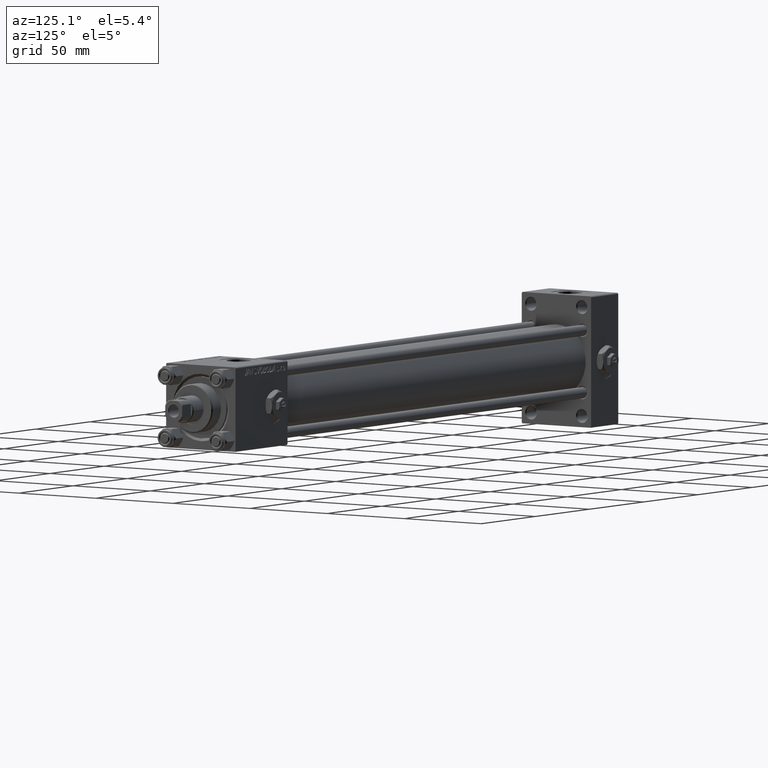
[diagram: clean part render]
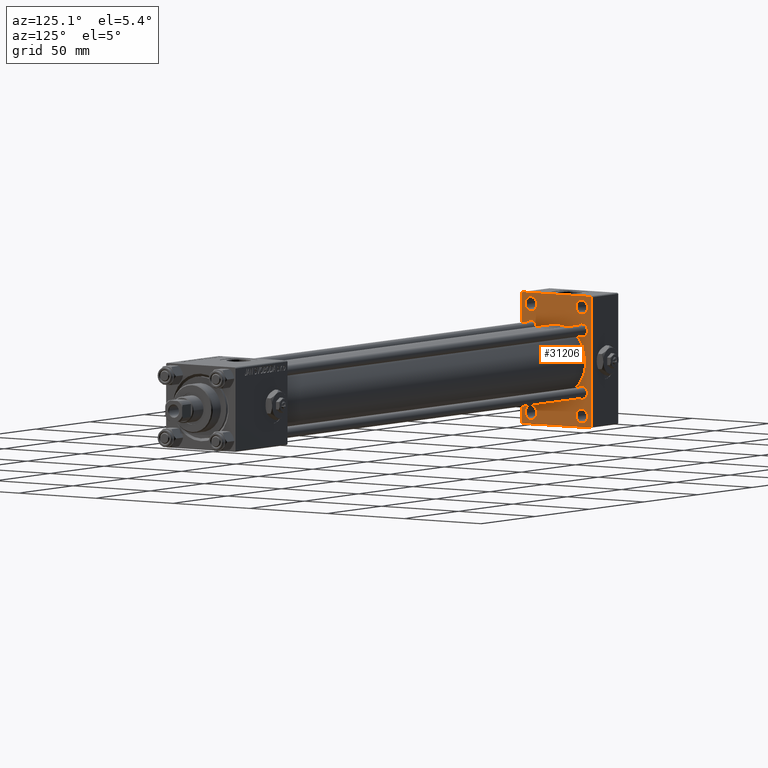
[diagram: same view with one face highlighted and labeled with its STEP entity id]
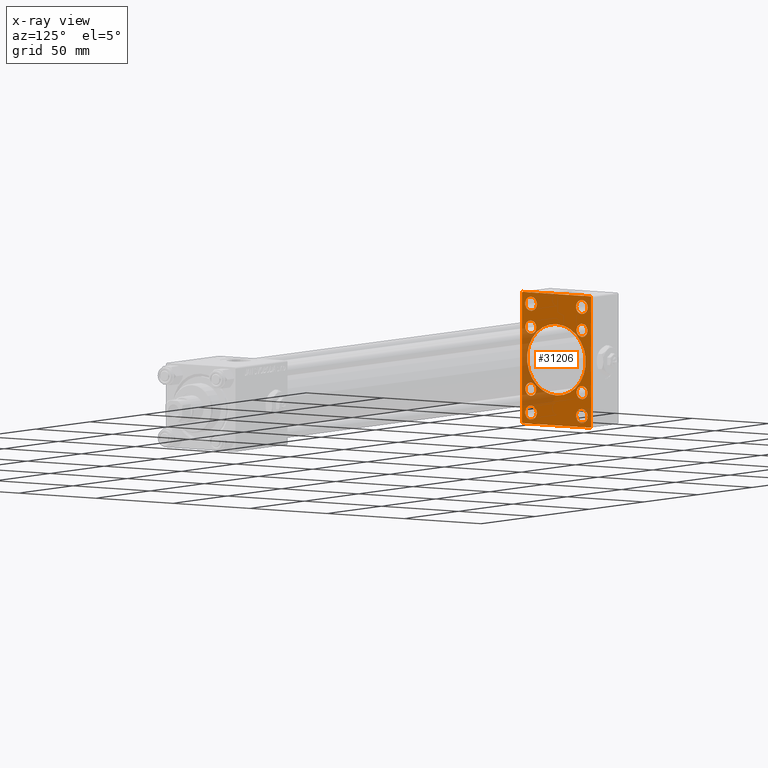
[diagram: x-ray of the same camera — body ghosted, the highlighted face saturated]
A machine part, auxiliary view. The second image highlights one B-rep face of the part: STEP entity #31206.
The next image is the same camera in x-ray: the body ghosted, the highlighted face saturated — about 18% of this face is hidden behind the body in this view.
In plain terms, the highlighted planar face has unit normal (-1, 0, 0).
Its self-contained STEP definition (entity closure, byte-faithful):
#171 = EDGE_LOOP ( 'NONE', ( #8662, #40964 ) ) ;
#396 = DIRECTION ( 'NONE',  ( -1.000000000000000000, 0.000000000000000000, -0.000000000000000000 ) ) ;
#1083 = VECTOR ( 'NONE', #9433, 1000.000000000000000 ) ;
#1148 = CIRCLE ( 'NONE', #10449, 3.750000000000031086 ) ;
#1446 = DIRECTION ( 'NONE',  ( 0.000000000000000000, 0.000000000000000000, 1.000000000000000000 ) ) ;
#1725 = VERTEX_POINT ( 'NONE', #39493 ) ;
#1752 = AXIS2_PLACEMENT_3D ( 'NONE', #6481, #31194, #10412 ) ;
#1815 = CARTESIAN_POINT ( 'NONE',  ( 25.00000000000000000, -22.49999999999999645, 34.50000000000000000 ) ) ;
#1946 = ORIENTED_EDGE ( 'NONE', *, *, #45982, .T. ) ;
#2104 = CIRCLE ( 'NONE', #34870, 19.00000000000000000 ) ;
#2373 = DIRECTION ( 'NONE',  ( -1.000000000000000000, 0.000000000000000000, -0.000000000000000000 ) ) ;
#2510 = DIRECTION ( 'NONE',  ( -1.000000000000000000, 0.000000000000000000, -0.000000000000000000 ) ) ;
#2941 = VERTEX_POINT ( 'NONE', #28178 ) ;
#2954 = ORIENTED_EDGE ( 'NONE', *, *, #13267, .F. ) ;
#3688 = VERTEX_POINT ( 'NONE', #48472 ) ;
#3697 = VERTEX_POINT ( 'NONE', #5105 ) ;
#3707 = CIRCLE ( 'NONE', #27233, 19.00000000000000000 ) ;
#4141 = CIRCLE ( 'NONE', #32688, 3.750000000000027534 ) ;
#4163 = VERTEX_POINT ( 'NONE', #32023 ) ;
#4206 = DIRECTION ( 'NONE',  ( 0.000000000000000000, 0.000000000000000000, 1.000000000000000000 ) ) ;
#4829 = CARTESIAN_POINT ( 'NONE',  ( 25.00000000000000000, 16.59999999999999787, -13.10000000000000142 ) ) ;
#4870 = EDGE_CURVE ( 'NONE', #28788, #3697, #16174, .T. ) ;
#5081 = ORIENTED_EDGE ( 'NONE', *, *, #36598, .T. ) ;
#5105 = CARTESIAN_POINT ( 'NONE',  ( 25.00000000000000000, -16.59999999999999076, -13.10000000000000320 ) ) ;
#5469 = EDGE_CURVE ( 'NONE', #3697, #28788, #45482, .T. ) ;
#6253 = LINE ( 'NONE', #37289, #48133 ) ;
#6481 = CARTESIAN_POINT ( 'NONE',  ( 25.00000000000000000, 16.59999999999999787, -16.60000000000000497 ) ) ;
#6718 = CARTESIAN_POINT ( 'NONE',  ( 25.00000000000000000, -22.49999999999999645, 35.00000000000000000 ) ) ;
#7016 = AXIS2_PLACEMENT_3D ( 'NONE', #33459, #49985, #14240 ) ;
#7407 = CARTESIAN_POINT ( 'NONE',  ( 25.00000000000000000, 16.49999999999999289, -32.75000000000003553 ) ) ;
#8071 = VERTEX_POINT ( 'NONE', #20114 ) ;
#8276 = VERTEX_POINT ( 'NONE', #30042 ) ;
#8409 = ORIENTED_EDGE ( 'NONE', *, *, #39107, .T. ) ;
#8465 = EDGE_LOOP ( 'NONE', ( #11294, #19763 ) ) ;
#8549 = VECTOR ( 'NONE', #29830, 1000.000000000000000 ) ;
#8662 = ORIENTED_EDGE ( 'NONE', *, *, #44168, .T. ) ;
#8977 = EDGE_CURVE ( 'NONE', #8276, #18708, #16945, .T. ) ;
#9288 = LINE ( 'NONE', #26138, #8549 ) ;
#9427 = VERTEX_POINT ( 'NONE', #17416 ) ;
#9433 = DIRECTION ( 'NONE',  ( -0.000000000000000000, -0.7071067811865426878, -0.7071067811865524577 ) ) ;
#9802 = DIRECTION ( 'NONE',  ( 0.000000000000000000, 0.000000000000000000, 1.000000000000000000 ) ) ;
#10044 = ORIENTED_EDGE ( 'NONE', *, *, #41201, .T. ) ;
#10353 = CARTESIAN_POINT ( 'NONE',  ( 25.00000000000000000, 0.000000000000000000, 0.000000000000000000 ) ) ;
#10376 = VERTEX_POINT ( 'NONE', #44428 ) ;
#10405 = CARTESIAN_POINT ( 'NONE',  ( 25.00000000000000000, 16.49999999999999289, 28.99999999999998934 ) ) ;
#10412 = DIRECTION ( 'NONE',  ( 0.000000000000000000, 0.000000000000000000, 1.000000000000000000 ) ) ;
#10449 = AXIS2_PLACEMENT_3D ( 'NONE', #27261, #23327, #39355 ) ;
#10772 = ORIENTED_EDGE ( 'NONE', *, *, #32262, .T. ) ;
#10872 = PLANE ( 'NONE',  #44563 ) ;
#11032 = VERTEX_POINT ( 'NONE', #24589 ) ;
#11193 = EDGE_CURVE ( 'NONE', #9427, #37200, #3707, .T. ) ;
#11242 = CIRCLE ( 'NONE', #28011, 3.500000000000006661 ) ;
#11294 = ORIENTED_EDGE ( 'NONE', *, *, #4870, .T. ) ;
#11700 = EDGE_CURVE ( 'NONE', #1725, #21200, #1148, .T. ) ;
#11942 = CARTESIAN_POINT ( 'NONE',  ( 25.00000000000000000, -16.59999999999999076, -20.10000000000000853 ) ) ;
#12761 = CARTESIAN_POINT ( 'NONE',  ( 25.00000000000000000, -16.50000000000000711, -25.24999999999998224 ) ) ;
#13031 = EDGE_CURVE ( 'NONE', #31100, #49655, #32293, .T. ) ;
#13037 = CARTESIAN_POINT ( 'NONE',  ( 25.00000000000000000, 16.59999999999999787, 16.60000000000000497 ) ) ;
#13204 = CARTESIAN_POINT ( 'NONE',  ( 25.00000000000002132, -2.602085213965210642E-15, 0.000000000000000000 ) ) ;
#13267 = EDGE_CURVE ( 'NONE', #37200, #9427, #2104, .T. ) ;
#13480 = CARTESIAN_POINT ( 'NONE',  ( 25.00000000000000000, 16.49999999999999289, -29.00000000000000711 ) ) ;
#14074 = DIRECTION ( 'NONE',  ( 0.000000000000000000, 0.000000000000000000, 1.000000000000000000 ) ) ;
#14240 = DIRECTION ( 'NONE',  ( 0.000000000000000000, 0.000000000000000000, 1.000000000000000000 ) ) ;
#14292 = FACE_BOUND ( 'NONE', #21911, .T. ) ;
#14367 = AXIS2_PLACEMENT_3D ( 'NONE', #30270, #2373, #14464 ) ;
#14464 = DIRECTION ( 'NONE',  ( 0.000000000000000000, 0.000000000000000000, 1.000000000000000000 ) ) ;
#14550 = CIRCLE ( 'NONE', #15365, 3.500000000000006661 ) ;
#14555 = FACE_BOUND ( 'NONE', #41535, .T. ) ;
#15069 = FACE_BOUND ( 'NONE', #43981, .T. ) ;
#15365 = AXIS2_PLACEMENT_3D ( 'NONE', #46898, #31144, #39278 ) ;
#15833 = CARTESIAN_POINT ( 'NONE',  ( 25.00000000000002132, -2.602085213965210642E-15, 0.000000000000000000 ) ) ;
#16174 = CIRCLE ( 'NONE', #45565, 3.500000000000003109 ) ;
#16296 = ORIENTED_EDGE ( 'NONE', *, *, #30824, .T. ) ;
#16668 = CARTESIAN_POINT ( 'NONE',  ( 25.00000000000000000, 16.59999999999999787, 20.10000000000000853 ) ) ;
#16776 = VERTEX_POINT ( 'NONE', #44613 ) ;
#16945 = LINE ( 'NONE', #44548, #44761 ) ;
#17056 = LINE ( 'NONE', #33908, #38384 ) ;
#17416 = CARTESIAN_POINT ( 'NONE',  ( 25.00000000000002132, -2.752562955852396712E-16, -19.00000000000000000 ) ) ;
#17702 = ORIENTED_EDGE ( 'NONE', *, *, #13031, .T. ) ;
#17995 = CARTESIAN_POINT ( 'NONE',  ( 25.00000000000000000, 22.50000000000000355, 35.00000000000000711 ) ) ;
#18567 = AXIS2_PLACEMENT_3D ( 'NONE', #10405, #2510, #25927 ) ;
#18708 = VERTEX_POINT ( 'NONE', #35773 ) ;
#18810 = DIRECTION ( 'NONE',  ( -1.000000000000000000, 0.000000000000000000, -0.000000000000000000 ) ) ;
#18826 = DIRECTION ( 'NONE',  ( -1.000000000000000000, 0.000000000000000000, -0.000000000000000000 ) ) ;
#19576 = EDGE_LOOP ( 'NONE', ( #46588, #1946, #34207, #5081, #24723, #38457, #33188, #41280 ) ) ;
#19763 = ORIENTED_EDGE ( 'NONE', *, *, #5469, .T. ) ;
#19837 = CARTESIAN_POINT ( 'NONE',  ( 25.00000000000000000, -16.50000000000000711, -32.75000000000003553 ) ) ;
#20114 = CARTESIAN_POINT ( 'NONE',  ( 25.00000000000000000, -22.49999999999999645, -34.50000000000000000 ) ) ;
#20270 = ORIENTED_EDGE ( 'NONE', *, *, #30980, .T. ) ;
#20384 = DIRECTION ( 'NONE',  ( 0.000000000000000000, 0.000000000000000000, -1.000000000000000000 ) ) ;
#20410 = CARTESIAN_POINT ( 'NONE',  ( 25.00000000000000000, -16.59999999999999076, -16.60000000000000853 ) ) ;
#21110 = ORIENTED_EDGE ( 'NONE', *, *, #27579, .T. ) ;
#21131 = EDGE_CURVE ( 'NONE', #44427, #10376, #17056, .T. ) ;
#21200 = VERTEX_POINT ( 'NONE', #35200 ) ;
#21214 = DIRECTION ( 'NONE',  ( -1.000000000000000000, 0.000000000000000000, -0.000000000000000000 ) ) ;
#21552 = DIRECTION ( 'NONE',  ( 0.000000000000000000, -1.000000000000000000, -1.541976423090495387E-16 ) ) ;
#21676 = VECTOR ( 'NONE', #22774, 1000.000000000000000 ) ;
#21911 = EDGE_LOOP ( 'NONE', ( #20270, #43101 ) ) ;
#22203 = FACE_BOUND ( 'NONE', #26629, .T. ) ;
#22211 = CARTESIAN_POINT ( 'NONE',  ( 25.00000000000000000, 22.00000000000000355, 35.00000000000000711 ) ) ;
#22774 = DIRECTION ( 'NONE',  ( 0.000000000000000000, 0.000000000000000000, -1.000000000000000000 ) ) ;
#22863 = AXIS2_PLACEMENT_3D ( 'NONE', #50412, #50927, #30990 ) ;
#23017 = AXIS2_PLACEMENT_3D ( 'NONE', #23255, #18810, #39285 ) ;
#23255 = CARTESIAN_POINT ( 'NONE',  ( 25.00000000000000000, -16.50000000000000711, -29.00000000000000711 ) ) ;
#23327 = DIRECTION ( 'NONE',  ( -1.000000000000000000, 0.000000000000000000, -0.000000000000000000 ) ) ;
#23430 = CARTESIAN_POINT ( 'NONE',  ( 25.00000000000000000, 21.99999999999999645, -34.99999999999999289 ) ) ;
#23661 = AXIS2_PLACEMENT_3D ( 'NONE', #42729, #29874, #14074 ) ;
#23732 = DIRECTION ( 'NONE',  ( 0.000000000000000000, 0.000000000000000000, 1.000000000000000000 ) ) ;
#24462 = EDGE_CURVE ( 'NONE', #45218, #8071, #42732, .T. ) ;
#24589 = CARTESIAN_POINT ( 'NONE',  ( 25.00000000000000000, -16.59999999999999076, 20.10000000000001208 ) ) ;
#24723 = ORIENTED_EDGE ( 'NONE', *, *, #31127, .T. ) ;
#25054 = VERTEX_POINT ( 'NONE', #47250 ) ;
#25400 = VERTEX_POINT ( 'NONE', #4829 ) ;
#25401 = DIRECTION ( 'NONE',  ( -1.000000000000000000, 0.000000000000000000, -0.000000000000000000 ) ) ;
#25927 = DIRECTION ( 'NONE',  ( 0.000000000000000000, 0.000000000000000000, 1.000000000000000000 ) ) ;
#26034 = DIRECTION ( 'NONE',  ( 0.000000000000000000, 0.000000000000000000, 1.000000000000000000 ) ) ;
#26138 = CARTESIAN_POINT ( 'NONE',  ( 25.00000000000000000, -22.00000000000000355, -35.00000000000000000 ) ) ;
#26194 = CIRCLE ( 'NONE', #23661, 3.750000000000027534 ) ;
#26629 = EDGE_LOOP ( 'NONE', ( #2954, #37660 ) ) ;
#27233 = AXIS2_PLACEMENT_3D ( 'NONE', #13204, #29997, #26034 ) ;
#27261 = CARTESIAN_POINT ( 'NONE',  ( 25.00000000000000000, -16.50000000000000711, 28.99999999999998934 ) ) ;
#27308 = EDGE_LOOP ( 'NONE', ( #8409, #29714 ) ) ;
#27579 = EDGE_CURVE ( 'NONE', #3688, #16776, #36888, .T. ) ;
#28011 = AXIS2_PLACEMENT_3D ( 'NONE', #44682, #39981, #4206 ) ;
#28178 = CARTESIAN_POINT ( 'NONE',  ( 25.00000000000000000, 16.59999999999999787, -20.10000000000000853 ) ) ;
#28444 = DIRECTION ( 'NONE',  ( 1.000000000000000000, -0.000000000000000000, 0.000000000000000000 ) ) ;
#28788 = VERTEX_POINT ( 'NONE', #11942 ) ;
#28979 = VERTEX_POINT ( 'NONE', #22211 ) ;
#29120 = ORIENTED_EDGE ( 'NONE', *, *, #45186, .T. ) ;
#29465 = CIRCLE ( 'NONE', #1752, 3.500000000000003109 ) ;
#29502 = VECTOR ( 'NONE', #29573, 999.9999999999998863 ) ;
#29573 = DIRECTION ( 'NONE',  ( 0.000000000000000000, -0.7071067811865376918, 0.7071067811865574537 ) ) ;
#29714 = ORIENTED_EDGE ( 'NONE', *, *, #11700, .T. ) ;
#29830 = DIRECTION ( 'NONE',  ( 0.000000000000000000, 0.7071067811865426878, -0.7071067811865524577 ) ) ;
#29837 = CARTESIAN_POINT ( 'NONE',  ( 25.00000000000000000, 22.00000000000000355, 35.00000000000000711 ) ) ;
#29874 = DIRECTION ( 'NONE',  ( -1.000000000000000000, 0.000000000000000000, -0.000000000000000000 ) ) ;
#29997 = DIRECTION ( 'NONE',  ( 1.000000000000000000, -0.000000000000000000, 0.000000000000000000 ) ) ;
#30042 = CARTESIAN_POINT ( 'NONE',  ( 25.00000000000000000, 22.50000000000000355, 34.49999999999999289 ) ) ;
#30270 = CARTESIAN_POINT ( 'NONE',  ( 25.00000000000000000, -16.50000000000000711, 28.99999999999998934 ) ) ;
#30318 = EDGE_LOOP ( 'NONE', ( #10772, #33931 ) ) ;
#30362 = FACE_BOUND ( 'NONE', #171, .T. ) ;
#30623 = DIRECTION ( 'NONE',  ( -1.000000000000000000, 0.000000000000000000, -0.000000000000000000 ) ) ;
#30824 = EDGE_CURVE ( 'NONE', #49655, #31100, #31978, .T. ) ;
#30980 = EDGE_CURVE ( 'NONE', #2941, #25400, #29465, .T. ) ;
#30990 = DIRECTION ( 'NONE',  ( 0.000000000000000000, 0.000000000000000000, 1.000000000000000000 ) ) ;
#31100 = VERTEX_POINT ( 'NONE', #16668 ) ;
#31127 = EDGE_CURVE ( 'NONE', #28979, #36299, #49771, .T. ) ;
#31132 = FACE_BOUND ( 'NONE', #34595, .T. ) ;
#31144 = DIRECTION ( 'NONE',  ( -1.000000000000000000, 0.000000000000000000, -0.000000000000000000 ) ) ;
#31194 = DIRECTION ( 'NONE',  ( -1.000000000000000000, 0.000000000000000000, -0.000000000000000000 ) ) ;
#31206 = ADVANCED_FACE ( 'NONE', ( #31132, #50299, #14555, #39266, #42166, #14292, #30362, #15069, #22203, #46362 ), #10872, .F. ) ;
#31978 = CIRCLE ( 'NONE', #38716, 3.500000000000003109 ) ;
#32005 = CIRCLE ( 'NONE', #14367, 3.750000000000031086 ) ;
#32023 = CARTESIAN_POINT ( 'NONE',  ( 25.00000000000000000, 16.49999999999999289, -25.24999999999998224 ) ) ;
#32262 = EDGE_CURVE ( 'NONE', #40304, #4163, #4141, .T. ) ;
#32293 = CIRCLE ( 'NONE', #49071, 3.500000000000003109 ) ;
#32371 = AXIS2_PLACEMENT_3D ( 'NONE', #42720, #18826, #34857 ) ;
#32688 = AXIS2_PLACEMENT_3D ( 'NONE', #13480, #41088, #9802 ) ;
#32727 = DIRECTION ( 'NONE',  ( 0.000000000000000000, 0.000000000000000000, 1.000000000000000000 ) ) ;
#32810 = VECTOR ( 'NONE', #45576, 1000.000000000000000 ) ;
#33188 = ORIENTED_EDGE ( 'NONE', *, *, #24462, .T. ) ;
#33459 = CARTESIAN_POINT ( 'NONE',  ( 25.00000000000000000, 16.49999999999999289, -29.00000000000000711 ) ) ;
#33908 = CARTESIAN_POINT ( 'NONE',  ( 25.00000000000000000, 22.50000000000000355, -34.99999999999999289 ) ) ;
#33931 = ORIENTED_EDGE ( 'NONE', *, *, #44394, .T. ) ;
#34103 = DIRECTION ( 'NONE',  ( 0.000000000000000000, 0.000000000000000000, 1.000000000000000000 ) ) ;
#34147 = DIRECTION ( 'NONE',  ( -0.000000000000000000, 0.7071067811865525687, 0.7071067811865425767 ) ) ;
#34207 = ORIENTED_EDGE ( 'NONE', *, *, #8977, .F. ) ;
#34595 = EDGE_LOOP ( 'NONE', ( #21110, #44421 ) ) ;
#34857 = DIRECTION ( 'NONE',  ( 0.000000000000000000, 0.000000000000000000, 1.000000000000000000 ) ) ;
#34870 = AXIS2_PLACEMENT_3D ( 'NONE', #15833, #28444, #23732 ) ;
#34925 = EDGE_CURVE ( 'NONE', #16776, #3688, #46229, .T. ) ;
#35200 = CARTESIAN_POINT ( 'NONE',  ( 25.00000000000000000, -16.50000000000000711, 25.24999999999996092 ) ) ;
#35773 = CARTESIAN_POINT ( 'NONE',  ( 25.00000000000000000, 22.50000000000000355, -34.49999999999999289 ) ) ;
#36299 = VERTEX_POINT ( 'NONE', #36468 ) ;
#36468 = CARTESIAN_POINT ( 'NONE',  ( 25.00000000000000000, -21.99999999999998934, 35.00000000000000000 ) ) ;
#36598 = EDGE_CURVE ( 'NONE', #8276, #28979, #38761, .T. ) ;
#36888 = CIRCLE ( 'NONE', #42793, 3.749999999999975575 ) ;
#37200 = VERTEX_POINT ( 'NONE', #47993 ) ;
#37236 = CARTESIAN_POINT ( 'NONE',  ( 25.00000000000000000, 16.49999999999999289, 28.99999999999998934 ) ) ;
#37289 = CARTESIAN_POINT ( 'NONE',  ( 25.00000000000000000, 22.50000000000000355, -34.49999999999999289 ) ) ;
#37457 = CARTESIAN_POINT ( 'NONE',  ( 25.00000000000000000, 16.59999999999999787, 16.60000000000000497 ) ) ;
#37660 = ORIENTED_EDGE ( 'NONE', *, *, #11193, .F. ) ;
#37864 = LINE ( 'NONE', #1815, #1083 ) ;
#38384 = VECTOR ( 'NONE', #21552, 1000.000000000000000 ) ;
#38457 = ORIENTED_EDGE ( 'NONE', *, *, #44757, .T. ) ;
#38716 = AXIS2_PLACEMENT_3D ( 'NONE', #13037, #21214, #34103 ) ;
#38761 = LINE ( 'NONE', #29837, #29502 ) ;
#38788 = VERTEX_POINT ( 'NONE', #19837 ) ;
#39107 = EDGE_CURVE ( 'NONE', #21200, #1725, #32005, .T. ) ;
#39176 = VERTEX_POINT ( 'NONE', #12761 ) ;
#39266 = FACE_BOUND ( 'NONE', #30318, .T. ) ;
#39278 = DIRECTION ( 'NONE',  ( 0.000000000000000000, 0.000000000000000000, 1.000000000000000000 ) ) ;
#39285 = DIRECTION ( 'NONE',  ( 0.000000000000000000, 0.000000000000000000, 1.000000000000000000 ) ) ;
#39355 = DIRECTION ( 'NONE',  ( 0.000000000000000000, 0.000000000000000000, 1.000000000000000000 ) ) ;
#39493 = CARTESIAN_POINT ( 'NONE',  ( 25.00000000000000000, -16.50000000000000711, 32.75000000000002132 ) ) ;
#39981 = DIRECTION ( 'NONE',  ( -1.000000000000000000, 0.000000000000000000, -0.000000000000000000 ) ) ;
#40304 = VERTEX_POINT ( 'NONE', #7407 ) ;
#40964 = ORIENTED_EDGE ( 'NONE', *, *, #45542, .T. ) ;
#41088 = DIRECTION ( 'NONE',  ( -1.000000000000000000, 0.000000000000000000, -0.000000000000000000 ) ) ;
#41201 = EDGE_CURVE ( 'NONE', #39176, #38788, #26194, .T. ) ;
#41280 = ORIENTED_EDGE ( 'NONE', *, *, #43078, .T. ) ;
#41377 = DIRECTION ( 'NONE',  ( -1.000000000000000000, 0.000000000000000000, -0.000000000000000000 ) ) ;
#41535 = EDGE_LOOP ( 'NONE', ( #29120, #10044 ) ) ;
#42166 = FACE_BOUND ( 'NONE', #8465, .T. ) ;
#42288 = CIRCLE ( 'NONE', #23017, 3.750000000000027534 ) ;
#42720 = CARTESIAN_POINT ( 'NONE',  ( 25.00000000000000000, 16.59999999999999787, -16.60000000000000497 ) ) ;
#42729 = CARTESIAN_POINT ( 'NONE',  ( 25.00000000000000000, -16.50000000000000711, -29.00000000000000711 ) ) ;
#42732 = LINE ( 'NONE', #6718, #21676 ) ;
#42782 = CARTESIAN_POINT ( 'NONE',  ( 25.00000000000000000, 16.59999999999999787, 13.10000000000000142 ) ) ;
#42793 = AXIS2_PLACEMENT_3D ( 'NONE', #37236, #25401, #50357 ) ;
#43078 = EDGE_CURVE ( 'NONE', #8071, #10376, #9288, .T. ) ;
#43101 = ORIENTED_EDGE ( 'NONE', *, *, #49923, .T. ) ;
#43205 = DIRECTION ( 'NONE',  ( -0.000000000000000000, 0.000000000000000000, 1.000000000000000000 ) ) ;
#43981 = EDGE_LOOP ( 'NONE', ( #16296, #17702 ) ) ;
#44168 = EDGE_CURVE ( 'NONE', #25054, #11032, #14550, .T. ) ;
#44394 = EDGE_CURVE ( 'NONE', #4163, #40304, #48929, .T. ) ;
#44421 = ORIENTED_EDGE ( 'NONE', *, *, #34925, .T. ) ;
#44427 = VERTEX_POINT ( 'NONE', #23430 ) ;
#44428 = CARTESIAN_POINT ( 'NONE',  ( 25.00000000000000000, -21.99999999999998934, -35.00000000000000000 ) ) ;
#44548 = CARTESIAN_POINT ( 'NONE',  ( 25.00000000000000000, 22.50000000000000355, 35.00000000000000711 ) ) ;
#44563 = AXIS2_PLACEMENT_3D ( 'NONE', #10353, #30623, #43205 ) ;
#44613 = CARTESIAN_POINT ( 'NONE',  ( 25.00000000000000000, 16.49999999999999289, 32.74999999999996447 ) ) ;
#44682 = CARTESIAN_POINT ( 'NONE',  ( 25.00000000000000000, -16.59999999999999076, 16.60000000000000853 ) ) ;
#44757 = EDGE_CURVE ( 'NONE', #36299, #45218, #37864, .T. ) ;
#44761 = VECTOR ( 'NONE', #20384, 1000.000000000000000 ) ;
#45186 = EDGE_CURVE ( 'NONE', #38788, #39176, #42288, .T. ) ;
#45218 = VERTEX_POINT ( 'NONE', #50838 ) ;
#45482 = CIRCLE ( 'NONE', #22863, 3.500000000000003109 ) ;
#45542 = EDGE_CURVE ( 'NONE', #11032, #25054, #11242, .T. ) ;
#45565 = AXIS2_PLACEMENT_3D ( 'NONE', #20410, #396, #1446 ) ;
#45576 = DIRECTION ( 'NONE',  ( 0.000000000000000000, -1.000000000000000000, -1.541976423090495387E-16 ) ) ;
#45982 = EDGE_CURVE ( 'NONE', #44427, #18708, #6253, .T. ) ;
#46229 = CIRCLE ( 'NONE', #18567, 3.749999999999975575 ) ;
#46362 = FACE_OUTER_BOUND ( 'NONE', #19576, .T. ) ;
#46588 = ORIENTED_EDGE ( 'NONE', *, *, #21131, .F. ) ;
#46636 = CIRCLE ( 'NONE', #32371, 3.500000000000003109 ) ;
#46898 = CARTESIAN_POINT ( 'NONE',  ( 25.00000000000000000, -16.59999999999999076, 16.60000000000000853 ) ) ;
#47250 = CARTESIAN_POINT ( 'NONE',  ( 25.00000000000000000, -16.59999999999999076, 13.10000000000000142 ) ) ;
#47993 = CARTESIAN_POINT ( 'NONE',  ( 25.00000000000002132, -2.602085213965210642E-15, 19.00000000000000000 ) ) ;
#48133 = VECTOR ( 'NONE', #34147, 999.9999999999998863 ) ;
#48472 = CARTESIAN_POINT ( 'NONE',  ( 25.00000000000000000, 16.49999999999999289, 25.25000000000001421 ) ) ;
#48929 = CIRCLE ( 'NONE', #7016, 3.750000000000027534 ) ;
#49071 = AXIS2_PLACEMENT_3D ( 'NONE', #37457, #41377, #32727 ) ;
#49655 = VERTEX_POINT ( 'NONE', #42782 ) ;
#49771 = LINE ( 'NONE', #17995, #32810 ) ;
#49923 = EDGE_CURVE ( 'NONE', #25400, #2941, #46636, .T. ) ;
#49985 = DIRECTION ( 'NONE',  ( -1.000000000000000000, 0.000000000000000000, -0.000000000000000000 ) ) ;
#50299 = FACE_BOUND ( 'NONE', #27308, .T. ) ;
#50357 = DIRECTION ( 'NONE',  ( 0.000000000000000000, 0.000000000000000000, 1.000000000000000000 ) ) ;
#50412 = CARTESIAN_POINT ( 'NONE',  ( 25.00000000000000000, -16.59999999999999076, -16.60000000000000853 ) ) ;
#50838 = CARTESIAN_POINT ( 'NONE',  ( 25.00000000000000000, -22.49999999999999645, 34.50000000000000000 ) ) ;
#50927 = DIRECTION ( 'NONE',  ( -1.000000000000000000, 0.000000000000000000, -0.000000000000000000 ) ) ;